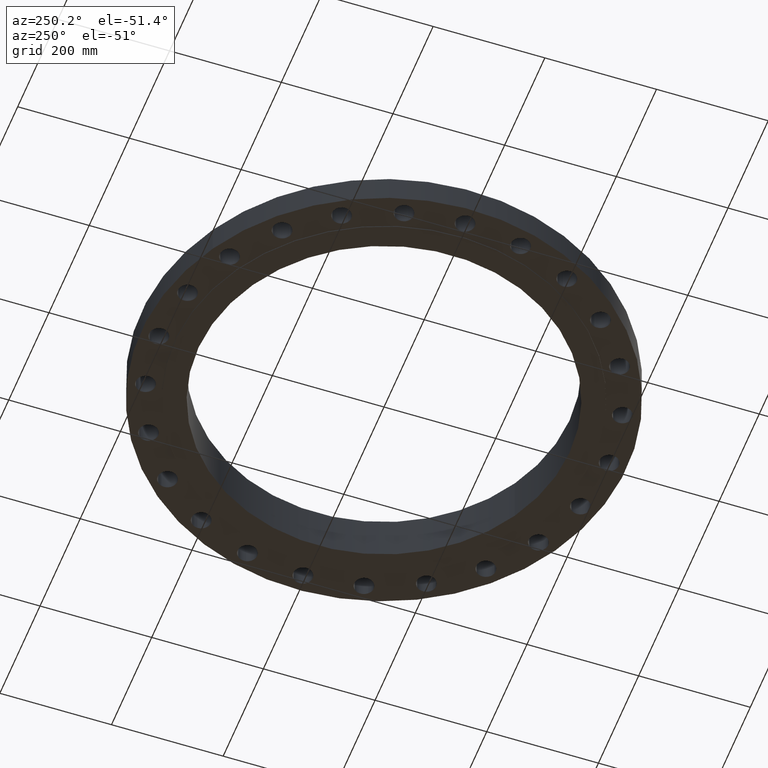
[diagram: clean part render]
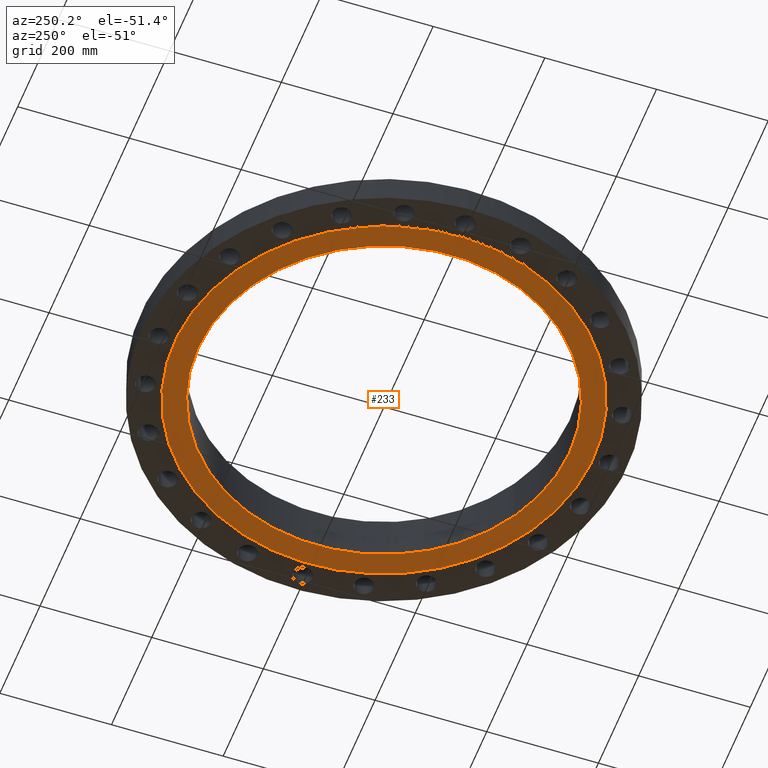
[diagram: same view with one face highlighted and labeled with its STEP entity id]
A machine part, auxiliary view. The second image highlights one B-rep face of the part: STEP entity #233.
In plain terms, the highlighted planar face has unit normal (0, 0, 1).
Its self-contained STEP definition (entity closure, byte-faithful):
#179=AXIS2_PLACEMENT_3D('Circle Axis2P3D',#177,#178,$) ;
#196=AXIS2_PLACEMENT_3D('Circle Axis2P3D',#194,#195,$) ;
#209=AXIS2_PLACEMENT_3D('Plane Axis2P3D',#206,#207,#208) ;
#217=AXIS2_PLACEMENT_3D('Circle Axis2P3D',#215,#216,$) ;
#226=AXIS2_PLACEMENT_3D('Circle Axis2P3D',#224,#225,$) ;
#158=CARTESIAN_POINT('Vertex',(7.07152669444,-12.9443427879,-0.0625000000003)) ;
#174=CARTESIAN_POINT('Vertex',(-7.07152669444,12.9443427879,-0.0625000000003)) ;
#177=CARTESIAN_POINT('Axis2P3D Location',(0.,0.,-0.0625000000003)) ;
#194=CARTESIAN_POINT('Axis2P3D Location',(0.,0.,-0.0625000000003)) ;
#206=CARTESIAN_POINT('Axis2P3D Location',(0.,14.7500000001,-0.0625000000002)) ;
#215=CARTESIAN_POINT('Axis2P3D Location',(0.,0.,-0.0625000000002)) ;
#219=CARTESIAN_POINT('Vertex',(6.27807742805,-11.491943648,-0.0625000000003)) ;
#221=CARTESIAN_POINT('Vertex',(-6.27807742805,11.491943648,-0.0625000000003)) ;
#224=CARTESIAN_POINT('Axis2P3D Location',(0.,0.,-0.0625000000002)) ;
#178=DIRECTION('Axis2P3D Direction',(0.,0.,0.0393700787402)) ;
#195=DIRECTION('Axis2P3D Direction',(0.,0.,0.0393700787402)) ;
#207=DIRECTION('Axis2P3D Direction',(0.,0.,0.0393700787402)) ;
#208=DIRECTION('Axis2P3D XDirection',(0.0393700787402,0.,0.)) ;
#216=DIRECTION('Axis2P3D Direction',(0.,0.,0.0393700787402)) ;
#225=DIRECTION('Axis2P3D Direction',(0.,0.,0.0393700787402)) ;
#212=ORIENTED_EDGE('',*,*,#181,.F.) ;
#213=ORIENTED_EDGE('',*,*,#198,.F.) ;
#230=ORIENTED_EDGE('',*,*,#223,.T.) ;
#231=ORIENTED_EDGE('',*,*,#228,.T.) ;
#232=FACE_BOUND('',#229,.T.) ;
#233=ADVANCED_FACE('PartBody',(#214,#232),#210,.F.) ;
#180=CIRCLE('generated circle',#179,14.7500000001) ;
#197=CIRCLE('generated circle',#196,14.7500000001) ;
#218=CIRCLE('generated circle',#217,13.0950000001) ;
#227=CIRCLE('generated circle',#226,13.0950000001) ;
#181=EDGE_CURVE('',#175,#159,#180,.T.) ;
#198=EDGE_CURVE('',#159,#175,#197,.T.) ;
#223=EDGE_CURVE('',#220,#222,#218,.T.) ;
#228=EDGE_CURVE('',#222,#220,#227,.T.) ;
#211=EDGE_LOOP('',(#212,#213)) ;
#229=EDGE_LOOP('',(#230,#231)) ;
#214=FACE_OUTER_BOUND('',#211,.T.) ;
#210=PLANE('',#209) ;
#159=VERTEX_POINT('',#158) ;
#175=VERTEX_POINT('',#174) ;
#220=VERTEX_POINT('',#219) ;
#222=VERTEX_POINT('',#221) ;